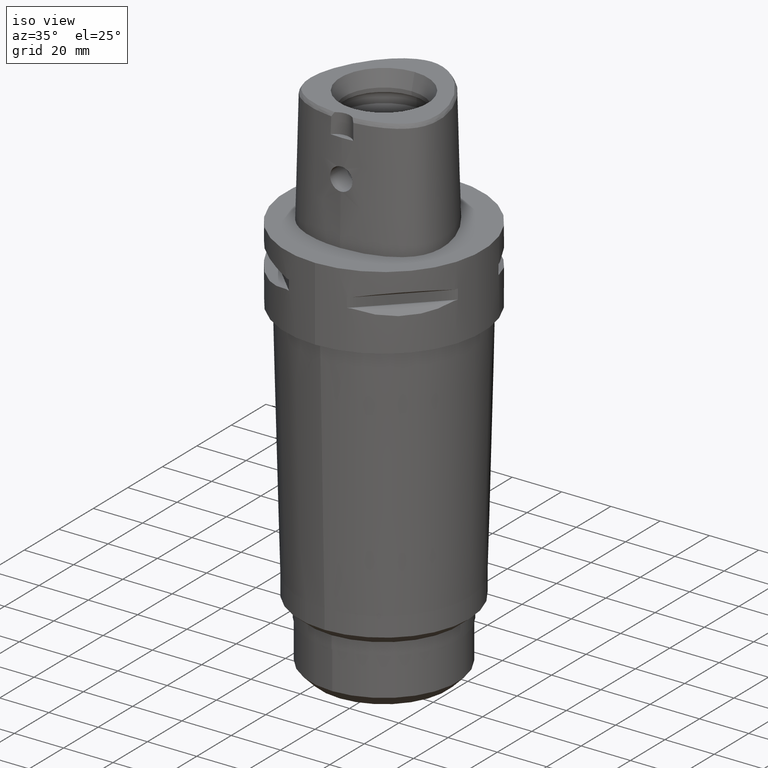
[diagram: clean part render]
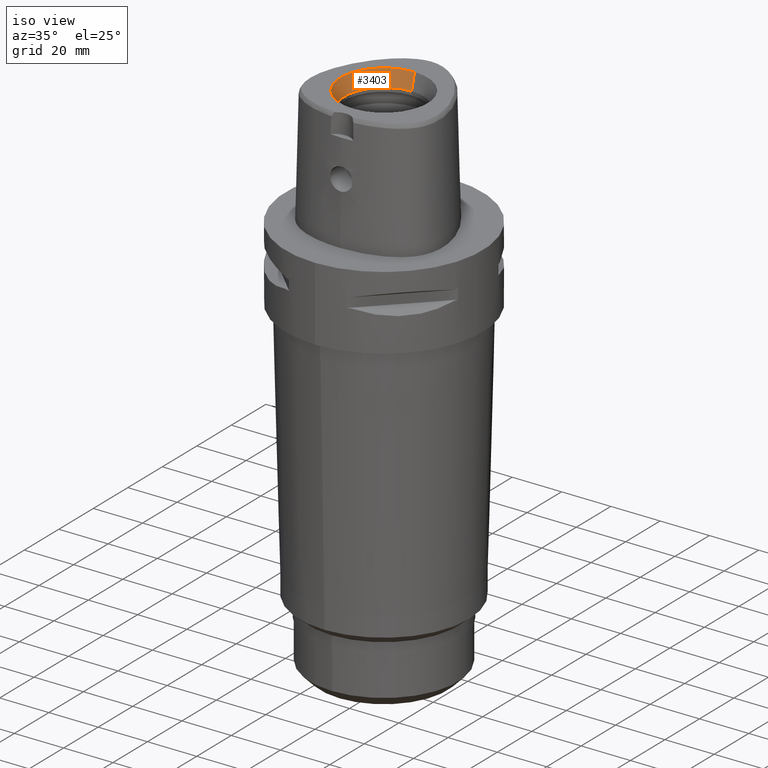
[diagram: same view with one face highlighted and labeled with its STEP entity id]
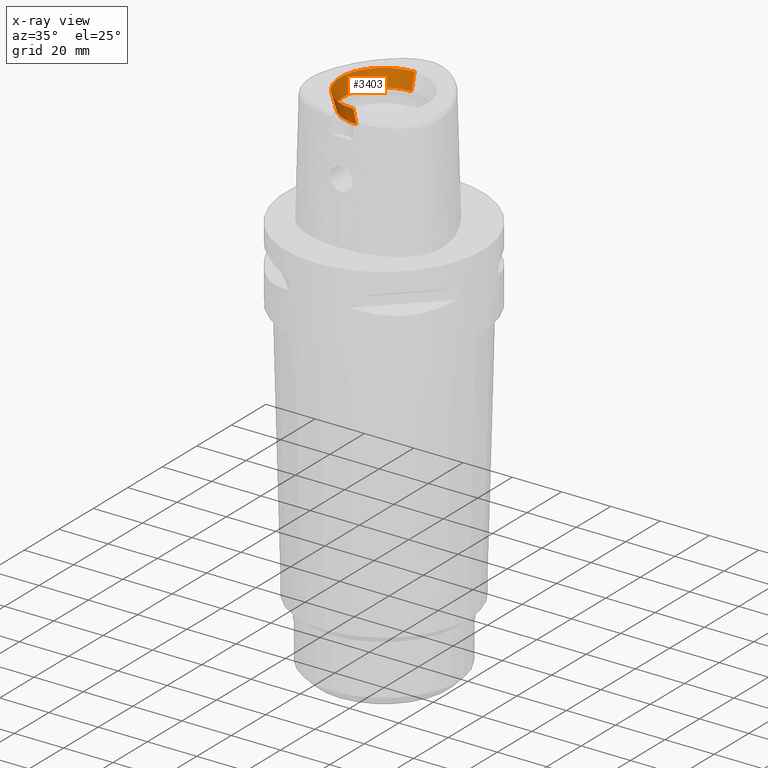
[diagram: x-ray of the same camera — body ghosted, the highlighted face saturated]
A machine part, iso view. The second image highlights one B-rep face of the part: STEP entity #3403.
The next image is the same camera in x-ray: the body ghosted, the highlighted face saturated — about 0% of this face is hidden behind the body in this view.
In plain terms, the highlighted conical surface has half-angle 15 deg.
Its self-contained STEP definition (entity closure, byte-faithful):
#109=CARTESIAN_POINT('',(0.E0,0.E0,4.8E1));
#110=DIRECTION('',(0.E0,0.E0,1.E0));
#111=DIRECTION('',(0.E0,1.E0,0.E0));
#112=AXIS2_PLACEMENT_3D('',#109,#110,#111);
#1263=CARTESIAN_POINT('',(0.E0,0.E0,4.16E1));
#1264=DIRECTION('',(0.E0,0.E0,1.E0));
#1265=DIRECTION('',(0.E0,1.E0,0.E0));
#1266=AXIS2_PLACEMENT_3D('',#1263,#1264,#1265);
#1271=DIRECTION('',(0.E0,-2.588190451026E-1,9.659258262891E-1));
#1272=VECTOR('',#1271,6.625767554625E0);
#1273=CARTESIAN_POINT('',(0.E0,-1.6E1,4.16E1));
#1274=LINE('',#1273,#1272);
#1286=DIRECTION('',(0.E0,2.588190451026E-1,9.659258262891E-1));
#1287=VECTOR('',#1286,6.625767554625E0);
#1288=CARTESIAN_POINT('',(0.E0,1.6E1,4.16E1));
#1289=LINE('',#1288,#1287);
#1598=CARTESIAN_POINT('',(0.E0,1.771487483156E1,4.8E1));
#1599=CARTESIAN_POINT('',(0.E0,-1.771487483156E1,4.8E1));
#1600=VERTEX_POINT('',#1598);
#1601=VERTEX_POINT('',#1599);
#1772=CARTESIAN_POINT('',(0.E0,-1.6E1,4.16E1));
#1773=VERTEX_POINT('',#1772);
#1774=CARTESIAN_POINT('',(0.E0,1.6E1,4.16E1));
#1775=VERTEX_POINT('',#1774);
#3390=CARTESIAN_POINT('',(0.E0,0.E0,4.48E1));
#3391=DIRECTION('',(0.E0,0.E0,1.E0));
#3392=DIRECTION('',(0.E0,1.E0,0.E0));
#3393=AXIS2_PLACEMENT_3D('',#3390,#3391,#3392);
#3394=CONICAL_SURFACE('',#3393,1.685743741578E1,1.5E1);
#3395=ORIENTED_EDGE('',*,*,#1789,.F.);
#3397=ORIENTED_EDGE('',*,*,#3396,.F.);
#3398=ORIENTED_EDGE('',*,*,#3383,.T.);
#3400=ORIENTED_EDGE('',*,*,#3399,.T.);
#3401=EDGE_LOOP('',(#3395,#3397,#3398,#3400));
#3402=FACE_OUTER_BOUND('',#3401,.F.);
#113=CIRCLE('',#112,1.771487483156E1);
#1267=CIRCLE('',#1266,1.6E1);
#1789=EDGE_CURVE('',#1600,#1601,#113,.T.);
#3383=EDGE_CURVE('',#1775,#1773,#1267,.T.);
#3396=EDGE_CURVE('',#1775,#1600,#1289,.T.);
#3399=EDGE_CURVE('',#1773,#1601,#1274,.T.);
#3403=ADVANCED_FACE('',(#3402),#3394,.F.);